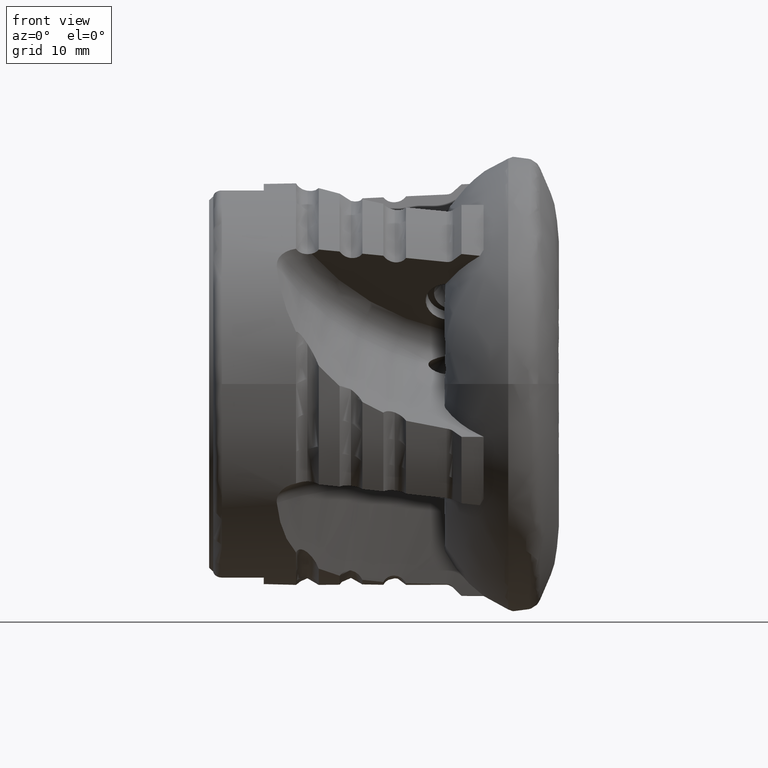
[diagram: clean part render]
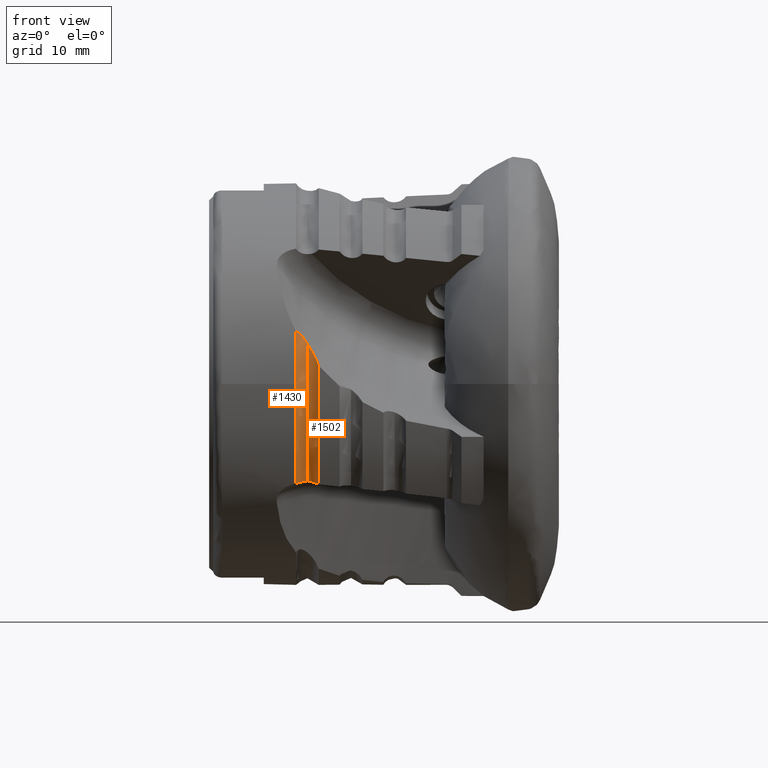
[diagram: same view with one multi-face feature highlighted, each face labeled with its STEP entity id]
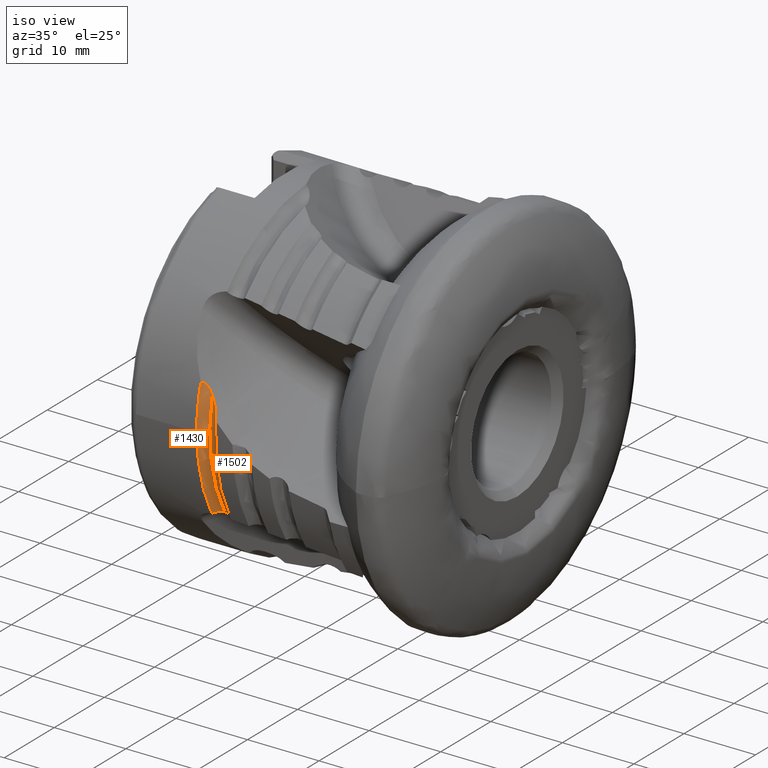
[diagram: same view with one multi-face feature highlighted, each face labeled with its STEP entity id]
A machine part, front view. The highlighted faces form ONE feature: a constant-radius fillet chain: 2 tangent blend faces with common blend radius 1.5 mm. The faces share edges in the B-rep.
A second angle (iso view) of the same feature is appended — it is thin or edge-on in the first view.
Their STEP definitions:
[1] entity #1502 (Torus):
#868 = VERTEX_POINT ( 'NONE', #7166 ) ;
#951 = VERTEX_POINT ( 'NONE', #11761 ) ;
#1010 = VERTEX_POINT ( 'NONE', #10898 ) ;
#1021 = VERTEX_POINT ( 'NONE', #10900 ) ;
#1088 = VERTEX_POINT ( 'NONE', #10974 ) ;
#1502 = ADVANCED_FACE ( 'NONE', ( #8082 ), #8083, .F. ) ;
#3861 = CARTESIAN_POINT ( 'NONE',  ( -27.20535320009968000, -19.32367561417225900, -11.19883502173724700 ) ) ;
#3875 = CARTESIAN_POINT ( 'NONE',  ( -27.36458444029724300, -19.27948490153827200, -11.16391930585896300 ) ) ;
#3884 = CARTESIAN_POINT ( 'NONE',  ( -27.53222002840892200, -19.25562184092499200, -11.14825222677704100 ) ) ;
#3885 = CARTESIAN_POINT ( 'NONE',  ( -27.70096189430734100, -19.25584164699467500, -11.14787255335589800 ) ) ;
#3903 = CARTESIAN_POINT ( 'NONE',  ( -27.03701440754697700, -19.37039390385976400, -11.23574781249844400 ) ) ;
#3904 = CARTESIAN_POINT ( 'NONE',  ( -27.20535320009968000, -19.32367561417225900, -11.19883502173724700 ) ) ;
#3909 = CARTESIAN_POINT ( 'NONE',  ( -26.88017333140286900, -19.44685881149751300, -11.28084147188089800 ) ) ;
#3910 = CARTESIAN_POINT ( 'NONE',  ( -26.67473384225956700, -19.59969983215436400, -11.35702545153481500 ) ) ;
#3911 = CARTESIAN_POINT ( 'NONE',  ( -26.61196759000395700, -19.65632261700466900, -11.38352664160970700 ) ) ;
#3912 = CARTESIAN_POINT ( 'NONE',  ( -26.49769931998475800, -19.78075790004680100, -11.43871052986459900 ) ) ;
#3913 = CARTESIAN_POINT ( 'NONE',  ( -26.44597037784727800, -19.84918599385683200, -11.46762254387762200 ) ) ;
#3914 = CARTESIAN_POINT ( 'NONE',  ( -26.40192378864668400, -19.92059759612326200, -11.49651214122476100 ) ) ;
#3950 = CARTESIAN_POINT ( 'NONE',  ( -26.40192378864668800, -3.233196362471089800E-015, 0.0000000000000000000 ) ) ;
#3951 = DIRECTION ( 'NONE',  ( 1.000000000000000000, 1.224606353822377000E-016, -0.0000000000000000000 ) ) ;
#3952 = DIRECTION ( 'NONE',  ( -1.508455196501571400E-016, 1.000000000000000000, 0.0000000000000000000 ) ) ;
#4015 = CARTESIAN_POINT ( 'NONE',  ( -27.70096189433831700, -21.76581807080650000, 4.616455751824512200 ) ) ;
#4016 = CARTESIAN_POINT ( 'NONE',  ( -27.56324449193991600, -21.81144800639416600, 4.401318224247874300 ) ) ;
#4023 = CARTESIAN_POINT ( 'NONE',  ( -27.43357784338178400, -21.87257211716287800, 4.186638550689161200 ) ) ;
#4024 = CARTESIAN_POINT ( 'NONE',  ( -27.18760575796217800, -22.01715047141799500, 3.760259184540821800 ) ) ;
#4025 = CARTESIAN_POINT ( 'NONE',  ( -27.07114077725501400, -22.10090870845761700, 3.548114777015682900 ) ) ;
#4026 = CARTESIAN_POINT ( 'NONE',  ( -26.74177917093029000, -22.38501271011279300, 2.913931107793951800 ) ) ;
#4027 = CARTESIAN_POINT ( 'NONE',  ( -26.54553531864021900, -22.61868509321787400, 2.490354609295398500 ) ) ;
#4028 = CARTESIAN_POINT ( 'NONE',  ( -26.40192378864626100, -22.90556013308699700, 2.082141923493543000 ) ) ;
#4075 = CARTESIAN_POINT ( 'NONE',  ( -27.70096189432334200, -3.469446951953614200E-015, 0.0000000000000000000 ) ) ;
#4076 = DIRECTION ( 'NONE',  ( 1.000000000000000000, 1.224606353822377000E-016, -0.0000000000000000000 ) ) ;
#4077 = DIRECTION ( 'NONE',  ( -1.559302000878028500E-016, 1.000000000000000000, 0.0000000000000000000 ) ) ;
#4184 = ORIENTED_EDGE ( 'NONE', *, *, #9674, .T. ) ;
#4225 = ORIENTED_EDGE ( 'NONE', *, *, #9685, .F. ) ;
#6844 = AXIS2_PLACEMENT_3D ( 'NONE', #13427, #13416, #13429 ) ;
#7024 = AXIS2_PLACEMENT_3D ( 'NONE', #3950, #3951, #3952 ) ;
#7032 = AXIS2_PLACEMENT_3D ( 'NONE', #4075, #4076, #4077 ) ;
#7166 = CARTESIAN_POINT ( 'NONE',  ( -27.20535320009968000, -19.32367561417225900, -11.19883502173724700 ) ) ;
#7293 = B_SPLINE_CURVE_WITH_KNOTS ( 'NONE', 3,
 ( #4015, #4016, #4023, #4024, #4025, #4026, #4027, #4028 ),
 .UNSPECIFIED., .F., .F.,
 ( 4, 2, 2, 4 ),
 ( 0.002134338887344597900, 0.002916945907376482800, 0.003699552927408367200, 0.005264766967472140300 ),
 .UNSPECIFIED. ) ;
#7329 = B_SPLINE_CURVE_WITH_KNOTS ( 'NONE', 3,
 ( #3861, #3875, #3884, #3885 ),
 .UNSPECIFIED., .F., .F.,
 ( 4, 4 ),
 ( 0.001072403999521735100, 0.001575174590043773800 ),
 .UNSPECIFIED. ) ;
#7349 = B_SPLINE_CURVE_WITH_KNOTS ( 'NONE', 3,
 ( #3904, #3903, #3909, #3910, #3911, #3912, #3913, #3914 ),
 .UNSPECIFIED., .F., .F.,
 ( 4, 2, 2, 4 ),
 ( 0.006849564114171763000, 0.007380612569286755700, 0.007646136796844244700, 0.007911661024401734500 ),
 .UNSPECIFIED. ) ;
#8082 = FACE_OUTER_BOUND ( 'NONE', #13613, .T. ) ;
#8083 = TOROIDAL_SURFACE ( 'NONE', #6844, 23.75000000000000400, 1.499999999999999300 ) ;
#8539 = CIRCLE ( 'NONE', #7024, 23.00000000000000000 ) ;
#8543 = CIRCLE ( 'NONE', #7032, 22.25000000000000700 ) ;
#9216 = ORIENTED_EDGE ( 'NONE', *, *, #9670, .F. ) ;
#9240 = ORIENTED_EDGE ( 'NONE', *, *, #9706, .T. ) ;
#9264 = ORIENTED_EDGE ( 'NONE', *, *, #9697, .F. ) ;
#9670 = EDGE_CURVE ( 'NONE', #868, #1021, #7329, .T. ) ;
#9674 = EDGE_CURVE ( 'NONE', #868, #1088, #7349, .T. ) ;
#9685 = EDGE_CURVE ( 'NONE', #1010, #1088, #8539, .T. ) ;
#9697 = EDGE_CURVE ( 'NONE', #951, #1010, #7293, .T. ) ;
#9706 = EDGE_CURVE ( 'NONE', #951, #1021, #8543, .T. ) ;
#10898 = CARTESIAN_POINT ( 'NONE',  ( -26.40192378864626100, -22.90556013308699700, 2.082141923493543000 ) ) ;
#10900 = CARTESIAN_POINT ( 'NONE',  ( -27.70096189430734100, -19.25584164699467500, -11.14787255335589800 ) ) ;
#10974 = CARTESIAN_POINT ( 'NONE',  ( -26.40192378864668400, -19.92059759612326200, -11.49651214122476100 ) ) ;
#11761 = CARTESIAN_POINT ( 'NONE',  ( -27.70096189433831700, -21.76581807080650000, 4.616455751824512200 ) ) ;
#13416 = DIRECTION ( 'NONE',  ( 1.000000000000000000, 1.224606353822377000E-016, -0.0000000000000000000 ) ) ;
#13427 = CARTESIAN_POINT ( 'NONE',  ( -27.70096189432334200, -3.469446951953614200E-015, 0.0000000000000000000 ) ) ;
#13429 = DIRECTION ( 'NONE',  ( -1.224606353822377000E-016, 1.000000000000000000, 0.0000000000000000000 ) ) ;
#13613 = EDGE_LOOP ( 'NONE', ( #9264, #9240, #9216, #4184, #4225 ) ) ;
[2] entity #1430 (Torus):
#951 = VERTEX_POINT ( 'NONE', #11761 ) ;
#1021 = VERTEX_POINT ( 'NONE', #10900 ) ;
#1030 = VERTEX_POINT ( 'NONE', #10903 ) ;
#1430 = ADVANCED_FACE ( 'NONE', ( #7968 ), #7967, .F. ) ;
#1826 = CARTESIAN_POINT ( 'NONE',  ( -28.99999999999998900, -22.21473905552791100, 5.958638157733947300 ) ) ;
#1835 = CARTESIAN_POINT ( 'NONE',  ( -28.95817393413410600, -22.13612802513843300, 5.972079398530611100 ) ) ;
#1842 = CARTESIAN_POINT ( 'NONE',  ( -28.90712483057517800, -22.06045788181784000, 5.969501900754410800 ) ) ;
#1843 = CARTESIAN_POINT ( 'NONE',  ( -28.79283391574982100, -21.93070068331509900, 5.927615310600129900 ) ) ;
#1844 = CARTESIAN_POINT ( 'NONE',  ( -28.72980970551937600, -21.87686876684543300, 5.888439606617228400 ) ) ;
#1845 = CARTESIAN_POINT ( 'NONE',  ( -28.60606628111451100, -21.79494323944019400, 5.790886352711833500 ) ) ;
#1846 = CARTESIAN_POINT ( 'NONE',  ( -28.54388072533987900, -21.76524304992565100, 5.731922875537207100 ) ) ;
#1847 = CARTESIAN_POINT ( 'NONE',  ( -28.42499171853748100, -21.72235799473347500, 5.607783541993334200 ) ) ;
#1848 = CARTESIAN_POINT ( 'NONE',  ( -28.36722000928593700, -21.70860239738749800, 5.541631077788650800 ) ) ;
#1849 = CARTESIAN_POINT ( 'NONE',  ( -28.19760604813797400, -21.68258887004119000, 5.336216887872332400 ) ) ;
#1850 = CARTESIAN_POINT ( 'NONE',  ( -28.09299587554024300, -21.68539414393868400, 5.194894241080776400 ) ) ;
#1851 = CARTESIAN_POINT ( 'NONE',  ( -27.89145958810390300, -21.71112893353240400, 4.908422003243101600 ) ) ;
#1852 = CARTESIAN_POINT ( 'NONE',  ( -27.79483948271339200, -21.73471358991970000, 4.763108185766316900 ) ) ;
#1853 = CARTESIAN_POINT ( 'NONE',  ( -27.70096189433831700, -21.76581807080650000, 4.616455751824512200 ) ) ;
#2102 = B_SPLINE_CURVE_WITH_KNOTS ( 'NONE', 3,
 ( #6283, #6284, #6289, #6290, #6291, #6292, #6293, #6294 ),
 .UNSPECIFIED., .F., .F.,
 ( 4, 2, 2, 4 ),
 ( 0.001575174590043773800, 0.002363176482576657700, 0.002757177428843104200, 0.003151178375109550800 ),
 .UNSPECIFIED. ) ;
#2179 = DIRECTION ( 'NONE',  ( 1.000000000000000000, 1.224606353822377000E-016, -0.0000000000000000000 ) ) ;
#2181 = CARTESIAN_POINT ( 'NONE',  ( -27.70096189432334200, -3.469446951953614200E-015, 0.0000000000000000000 ) ) ;
#2183 = DIRECTION ( 'NONE',  ( -1.224606353822377000E-016, 1.000000000000000000, 0.0000000000000000000 ) ) ;
#3377 = CARTESIAN_POINT ( 'NONE',  ( -28.99999999999999300, -3.551358426084892900E-015, 0.0000000000000000000 ) ) ;
#3378 = DIRECTION ( 'NONE',  ( 1.000000000000000000, 1.224606353822377000E-016, -0.0000000000000000000 ) ) ;
#3379 = DIRECTION ( 'NONE',  ( -1.508455196501571700E-016, 1.000000000000000000, 0.0000000000000000000 ) ) ;
#4075 = CARTESIAN_POINT ( 'NONE',  ( -27.70096189432334200, -3.469446951953614200E-015, 0.0000000000000000000 ) ) ;
#4076 = DIRECTION ( 'NONE',  ( 1.000000000000000000, 1.224606353822377000E-016, -0.0000000000000000000 ) ) ;
#4077 = DIRECTION ( 'NONE',  ( -1.559302000878028500E-016, 1.000000000000000000, 0.0000000000000000000 ) ) ;
#4938 = B_SPLINE_CURVE_WITH_KNOTS ( 'NONE', 3,
 ( #1826, #1835, #1842, #1843, #1844, #1845, #1846, #1847, #1848, #1849, #1850, #1851, #1852, #1853 ),
 .UNSPECIFIED., .F., .F.,
 ( 4, 2, 2, 2, 2, 2, 4 ),
 ( 4.252814678304160500E-007, 0.0002671644822024276900, 0.0005339036829370250300, 0.0008006428836716222700, 0.001067382084406219600, 0.001600860485875408700, 0.002134338887344597900 ),
 .UNSPECIFIED. ) ;
#6283 = CARTESIAN_POINT ( 'NONE',  ( -27.70096189430734100, -19.25584164699467500, -11.14787255335589800 ) ) ;
#6284 = CARTESIAN_POINT ( 'NONE',  ( -27.96543422459901500, -19.25618615322125000, -11.14727748399388400 ) ) ;
#6285 = CARTESIAN_POINT ( 'NONE',  ( -28.99999999999999300, -3.551358426084892900E-015, 0.0000000000000000000 ) ) ;
#6286 = DIRECTION ( 'NONE',  ( 1.000000000000000000, 1.224606353822377000E-016, -0.0000000000000000000 ) ) ;
#6287 = DIRECTION ( 'NONE',  ( -1.508455196501571700E-016, 1.000000000000000000, 0.0000000000000000000 ) ) ;
#6289 = CARTESIAN_POINT ( 'NONE',  ( -28.22828650626252400, -19.31728277086891800, -11.18433775039193600 ) ) ;
#6290 = CARTESIAN_POINT ( 'NONE',  ( -28.56856854636672300, -19.50437950961497800, -11.25614591372194600 ) ) ;
#6291 = CARTESIAN_POINT ( 'NONE',  ( -28.67407207531733300, -19.58336861404583500, -11.28296866706416200 ) ) ;
#6292 = CARTESIAN_POINT ( 'NONE',  ( -28.85640921845862600, -19.76501137112184700, -11.33535768225495300 ) ) ;
#6293 = CARTESIAN_POINT ( 'NONE',  ( -28.93571788358570300, -19.86975076071544400, -11.36155722733993300 ) ) ;
#6294 = CARTESIAN_POINT ( 'NONE',  ( -28.99999999999998900, -19.98375535124418100, -11.38637440371691100 ) ) ;
#6774 = AXIS2_PLACEMENT_3D ( 'NONE', #2181, #2179, #2183 ) ;
#7032 = AXIS2_PLACEMENT_3D ( 'NONE', #4075, #4076, #4077 ) ;
#7102 = AXIS2_PLACEMENT_3D ( 'NONE', #3377, #3378, #3379 ) ;
#7167 = AXIS2_PLACEMENT_3D ( 'NONE', #6285, #6286, #6287 ) ;
#7604 = VERTEX_POINT ( 'NONE', #10757 ) ;
#7967 = TOROIDAL_SURFACE ( 'NONE', #6774, 23.75000000000000400, 1.499999999999999300 ) ;
#7968 = FACE_OUTER_BOUND ( 'NONE', #12031, .T. ) ;
#8543 = CIRCLE ( 'NONE', #7032, 22.25000000000000700 ) ;
#8671 = CIRCLE ( 'NONE', #7102, 22.99999999999999600 ) ;
#8922 = CARTESIAN_POINT ( 'NONE',  ( -28.99999999999998900, -19.98375535124418100, -11.38637440371691100 ) ) ;
#9569 = EDGE_CURVE ( 'NONE', #7604, #951, #4938, .T. ) ;
#9706 = EDGE_CURVE ( 'NONE', #951, #1021, #8543, .T. ) ;
#10024 = EDGE_CURVE ( 'NONE', #7604, #1030, #8671, .T. ) ;
#10230 = EDGE_CURVE ( 'NONE', #1030, #11231, #12101, .T. ) ;
#10231 = EDGE_CURVE ( 'NONE', #1021, #11231, #2102, .T. ) ;
#10757 = CARTESIAN_POINT ( 'NONE',  ( -28.99999999999998900, -22.21473905552791100, 5.958638157733947300 ) ) ;
#10900 = CARTESIAN_POINT ( 'NONE',  ( -27.70096189430734100, -19.25584164699467500, -11.14787255335589800 ) ) ;
#10903 = CARTESIAN_POINT ( 'NONE',  ( -28.99999999999998900, -23.00000000000000000, 2.816687638038912400E-015 ) ) ;
#11231 = VERTEX_POINT ( 'NONE', #8922 ) ;
#11761 = CARTESIAN_POINT ( 'NONE',  ( -27.70096189433831700, -21.76581807080650000, 4.616455751824512200 ) ) ;
#12031 = EDGE_LOOP ( 'NONE', ( #13114, #13115, #13116, #13117, #13118 ) ) ;
#12101 = CIRCLE ( 'NONE', #7167, 22.99999999999999600 ) ;
#13114 = ORIENTED_EDGE ( 'NONE', *, *, #9706, .F. ) ;
#13115 = ORIENTED_EDGE ( 'NONE', *, *, #9569, .F. ) ;
#13116 = ORIENTED_EDGE ( 'NONE', *, *, #10024, .T. ) ;
#13117 = ORIENTED_EDGE ( 'NONE', *, *, #10230, .T. ) ;
#13118 = ORIENTED_EDGE ( 'NONE', *, *, #10231, .F. ) ;